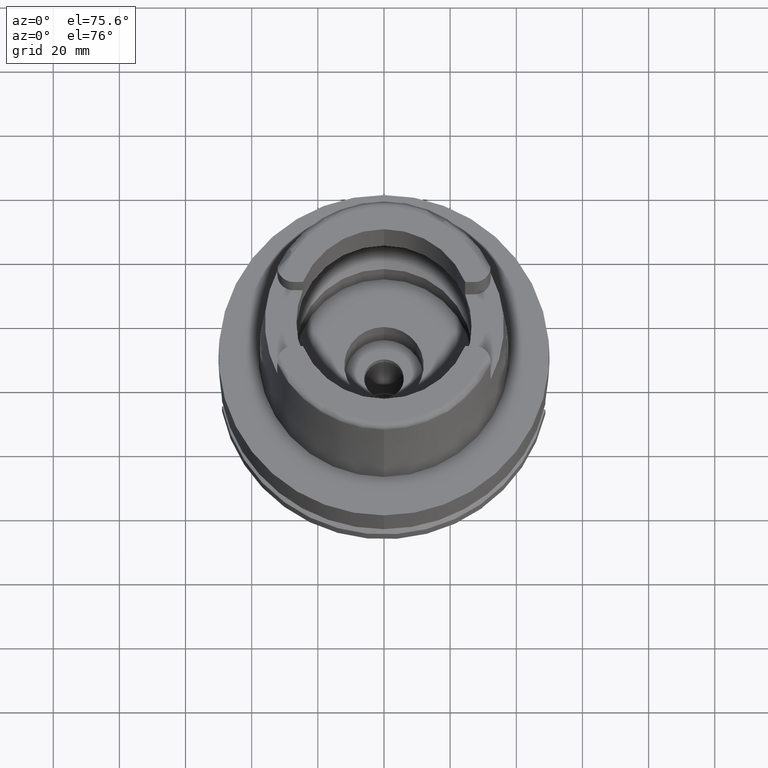
[diagram: clean part render]
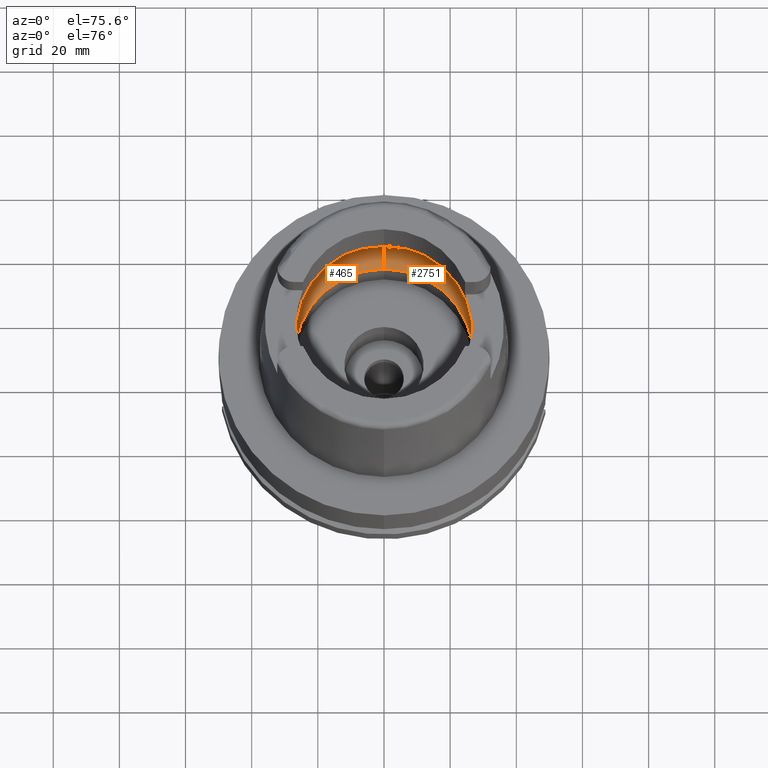
[diagram: same view with one multi-face feature highlighted, each face labeled with its STEP entity id]
A machine part, auxiliary view. The highlighted faces form ONE feature: a constant-radius fillet chain: 2 tangent blend faces with common blend radius 12 mm. The faces share edges in the B-rep.
Their STEP definitions:
[1] entity #465 (Torus):
#81 = EDGE_CURVE ( 'NONE', #4133, #3834, #2487, .T. ) ;
#96 = VERTEX_POINT ( 'NONE', #5460 ) ;
#110 = DIRECTION ( 'NONE',  ( 0.0000000000000000000, -0.6166666666667049990, -0.7872243785746061429 ) ) ;
#209 = ORIENTED_EDGE ( 'NONE', *, *, #1128, .F. ) ;
#379 = CARTESIAN_POINT ( 'NONE',  ( -31.48971910754000447, -0.8697454017997489073, 8.999999999999998224 ) ) ;
#465 = ADVANCED_FACE ( 'NONE', ( #1566 ), #5236, .F. ) ;
#658 = CARTESIAN_POINT ( 'NONE',  ( 0.0000000000000000000, 31.50000000000000000, 9.496624327025999790 ) ) ;
#682 = VERTEX_POINT ( 'NONE', #1807 ) ;
#775 = CARTESIAN_POINT ( 'NONE',  ( 0.0000000000000000000, -19.50000000000000000, 9.496624327025999790 ) ) ;
#788 = EDGE_CURVE ( 'NONE', #682, #2054, #3675, .T. ) ;
#918 = DIRECTION ( 'NONE',  ( 0.0000000000000000000, 0.0000000000000000000, 1.000000000000000000 ) ) ;
#982 = DIRECTION ( 'NONE',  ( 0.0000000000000000000, 1.000000000000000000, 0.0000000000000000000 ) ) ;
#1128 = EDGE_CURVE ( 'NONE', #2054, #96, #4947, .T. ) ;
#1129 = DIRECTION ( 'NONE',  ( 0.0000000000000000000, 0.0000000000000000000, -1.000000000000000000 ) ) ;
#1276 = CARTESIAN_POINT ( 'NONE',  ( -31.48971910754000447, 0.0000000000000000000, 9.000000000000000000 ) ) ;
#1403 = CARTESIAN_POINT ( 'NONE',  ( -31.48971910754000447, 0.0000000000000000000, 9.000000000000000000 ) ) ;
#1405 = ORIENTED_EDGE ( 'NONE', *, *, #81, .F. ) ;
#1501 = ORIENTED_EDGE ( 'NONE', *, *, #788, .F. ) ;
#1566 = FACE_OUTER_BOUND ( 'NONE', #3249, .T. ) ;
#1787 = CARTESIAN_POINT ( 'NONE',  ( -31.40918884336000616, 2.390158196043999705, 9.496624327025999790 ) ) ;
#1807 = CARTESIAN_POINT ( 'NONE',  ( 0.0000000000000000000, 26.89999999999999858, 0.04993178413025000512 ) ) ;
#1819 = DIRECTION ( 'NONE',  ( 0.0000000000000000000, 0.6166666666667049990, -0.7872243785746061429 ) ) ;
#1857 = CARTESIAN_POINT ( 'NONE',  ( -31.48971910754000447, 0.8697454016785111097, 9.000000000000001776 ) ) ;
#1966 = AXIS2_PLACEMENT_3D ( 'NONE', #3688, #2737, #1819 ) ;
#2054 = VERTEX_POINT ( 'NONE', #4640 ) ;
#2116 = VERTEX_POINT ( 'NONE', #5221 ) ;
#2247 = ORIENTED_EDGE ( 'NONE', *, *, #4053, .T. ) ;
#2351 = AXIS2_PLACEMENT_3D ( 'NONE', #4339, #1129, #4375 ) ;
#2487 = CIRCLE ( 'NONE', #5124, 31.49999999999998934 ) ;
#2532 = VERTEX_POINT ( 'NONE', #1276 ) ;
#2587 = EDGE_CURVE ( 'NONE', #2116, #2532, #5472, .T. ) ;
#2653 = DIRECTION ( 'NONE',  ( -1.000000000000000000, 0.0000000000000000000, 0.0000000000000000000 ) ) ;
#2737 = DIRECTION ( 'NONE',  ( 1.000000000000000000, 0.0000000000000000000, 0.0000000000000000000 ) ) ;
#2816 = CARTESIAN_POINT ( 'NONE',  ( -31.40918884336000616, 2.390158196043999705, 9.496624327025999790 ) ) ;
#2876 = CARTESIAN_POINT ( 'NONE',  ( -31.46287568614665986, 1.684656699916923683, 9.190219624986275093 ) ) ;
#3076 = DIRECTION ( 'NONE',  ( 0.0000000000000000000, 0.0000000000000000000, 1.000000000000000000 ) ) ;
#3094 = CARTESIAN_POINT ( 'NONE',  ( -31.46287568614665986, -1.684656700028137832, 9.190219625034576012 ) ) ;
#3234 = CARTESIAN_POINT ( 'NONE',  ( 0.0000000000000000000, 0.0000000000000000000, 9.496624327025999790 ) ) ;
#3248 = EDGE_CURVE ( 'NONE', #96, #2116, #3814, .T. ) ;
#3249 = EDGE_LOOP ( 'NONE', ( #5370, #209, #1501, #2247, #1405, #5002, #3295 ) ) ;
#3295 = ORIENTED_EDGE ( 'NONE', *, *, #2587, .F. ) ;
#3384 = AXIS2_PLACEMENT_3D ( 'NONE', #4202, #918, #982 ) ;
#3561 = DIRECTION ( 'NONE',  ( -0.9971171061384295209, 0.07587803796965221503, 0.0000000000000000000 ) ) ;
#3632 = CARTESIAN_POINT ( 'NONE',  ( -31.48971910754000447, 0.0000000000000000000, 9.000000000000000000 ) ) ;
#3675 = CIRCLE ( 'NONE', #3384, 26.89999999999999858 ) ;
#3688 = CARTESIAN_POINT ( 'NONE',  ( 0.0000000000000000000, 19.50000000000000000, 9.496624327025999790 ) ) ;
#3814 = CIRCLE ( 'NONE', #2351, 31.50000000000000000 ) ;
#3834 = VERTEX_POINT ( 'NONE', #658 ) ;
#3930 = CARTESIAN_POINT ( 'NONE',  ( 0.0000000000000000000, 0.0000000000000000000, 9.496624327025999790 ) ) ;
#4053 = EDGE_CURVE ( 'NONE', #682, #3834, #5392, .T. ) ;
#4133 = VERTEX_POINT ( 'NONE', #1787 ) ;
#4202 = CARTESIAN_POINT ( 'NONE',  ( 0.0000000000000000000, 0.0000000000000000000, 0.04993178413026000406 ) ) ;
#4339 = CARTESIAN_POINT ( 'NONE',  ( 0.0000000000000000000, 0.0000000000000000000, 9.496624327025999790 ) ) ;
#4375 = DIRECTION ( 'NONE',  ( 0.0000000000000000000, -1.000000000000000000, 0.0000000000000000000 ) ) ;
#4640 = CARTESIAN_POINT ( 'NONE',  ( 0.0000000000000000000, -26.89999999999999858, 0.04993178413026000406 ) ) ;
#4930 = DIRECTION ( 'NONE',  ( 0.0000000000000000000, 1.000000000000000000, 0.0000000000000000000 ) ) ;
#4947 = CIRCLE ( 'NONE', #5246, 11.99999999999999822 ) ;
#5002 = ORIENTED_EDGE ( 'NONE', *, *, #5071, .F. ) ;
#5071 = EDGE_CURVE ( 'NONE', #2532, #4133, #5831, .T. ) ;
#5124 = AXIS2_PLACEMENT_3D ( 'NONE', #3234, #5523, #3561 ) ;
#5221 = CARTESIAN_POINT ( 'NONE',  ( -31.40918884336000616, -2.390158196043999705, 9.496624327025999790 ) ) ;
#5236 = TOROIDAL_SURFACE ( 'NONE', #5722, 19.50000000000000000, 12.00000000000000000 ) ;
#5246 = AXIS2_PLACEMENT_3D ( 'NONE', #775, #2653, #110 ) ;
#5370 = ORIENTED_EDGE ( 'NONE', *, *, #3248, .F. ) ;
#5392 = CIRCLE ( 'NONE', #1966, 11.99999999999999822 ) ;
#5460 = CARTESIAN_POINT ( 'NONE',  ( 0.0000000000000000000, -31.50000000000000000, 9.496624327025999790 ) ) ;
#5472 = B_SPLINE_CURVE_WITH_KNOTS ( 'NONE', 3,
 ( #5966, #3094, #379, #3632 ),
 .UNSPECIFIED., .F., .F.,
 ( 4, 4 ),
 ( 0.0000000000000000000, 1.000000000000000000 ),
 .UNSPECIFIED. ) ;
#5523 = DIRECTION ( 'NONE',  ( 0.0000000000000000000, 0.0000000000000000000, -1.000000000000000000 ) ) ;
#5722 = AXIS2_PLACEMENT_3D ( 'NONE', #3930, #3076, #4930 ) ;
#5831 = B_SPLINE_CURVE_WITH_KNOTS ( 'NONE', 3,
 ( #1403, #1857, #2876, #2816 ),
 .UNSPECIFIED., .F., .F.,
 ( 4, 4 ),
 ( 0.0000000000000000000, 1.000000000000000000 ),
 .UNSPECIFIED. ) ;
#5966 = CARTESIAN_POINT ( 'NONE',  ( -31.40918884336000616, -2.390158196043999705, 9.496624327025999790 ) ) ;
[2] entity #2751 (Torus):
#17 = EDGE_LOOP ( 'NONE', ( #4936, #204, #3011, #3491, #5803, #5824, #1982 ) ) ;
#96 = VERTEX_POINT ( 'NONE', #5460 ) ;
#110 = DIRECTION ( 'NONE',  ( 0.0000000000000000000, -0.6166666666667049990, -0.7872243785746061429 ) ) ;
#204 = ORIENTED_EDGE ( 'NONE', *, *, #5317, .F. ) ;
#658 = CARTESIAN_POINT ( 'NONE',  ( 0.0000000000000000000, 31.50000000000000000, 9.496624327025999790 ) ) ;
#682 = VERTEX_POINT ( 'NONE', #1807 ) ;
#775 = CARTESIAN_POINT ( 'NONE',  ( 0.0000000000000000000, -19.50000000000000000, 9.496624327025999790 ) ) ;
#1128 = EDGE_CURVE ( 'NONE', #2054, #96, #4947, .T. ) ;
#1169 = CARTESIAN_POINT ( 'NONE',  ( 0.0000000000000000000, 0.0000000000000000000, 9.496624327025999790 ) ) ;
#1304 = CARTESIAN_POINT ( 'NONE',  ( 31.48971910753999026, -0.8697454017312684638, 8.999999999999998224 ) ) ;
#1541 = CIRCLE ( 'NONE', #4766, 31.50000000000000000 ) ;
#1679 = DIRECTION ( 'NONE',  ( 0.0000000000000000000, 0.0000000000000000000, -1.000000000000000000 ) ) ;
#1807 = CARTESIAN_POINT ( 'NONE',  ( 0.0000000000000000000, 26.89999999999999858, 0.04993178413025000512 ) ) ;
#1819 = DIRECTION ( 'NONE',  ( 0.0000000000000000000, 0.6166666666667049990, -0.7872243785746061429 ) ) ;
#1922 = CIRCLE ( 'NONE', #5248, 26.89999999999999858 ) ;
#1966 = AXIS2_PLACEMENT_3D ( 'NONE', #3688, #2737, #1819 ) ;
#1982 = ORIENTED_EDGE ( 'NONE', *, *, #3980, .F. ) ;
#2054 = VERTEX_POINT ( 'NONE', #4640 ) ;
#2225 = DIRECTION ( 'NONE',  ( 0.0000000000000000000, 0.0000000000000000000, 1.000000000000000000 ) ) ;
#2227 = CARTESIAN_POINT ( 'NONE',  ( 31.48971910753999026, 0.8697454017787721314, 9.000000000000001776 ) ) ;
#2248 = CARTESIAN_POINT ( 'NONE',  ( 31.40918884336000616, -2.390158196043999705, 9.496624327025999790 ) ) ;
#2653 = DIRECTION ( 'NONE',  ( -1.000000000000000000, 0.0000000000000000000, 0.0000000000000000000 ) ) ;
#2719 = CARTESIAN_POINT ( 'NONE',  ( 31.46287568614665986, 1.684656700008886121, 9.190219625026216477 ) ) ;
#2737 = DIRECTION ( 'NONE',  ( 1.000000000000000000, 0.0000000000000000000, 0.0000000000000000000 ) ) ;
#2751 = ADVANCED_FACE ( 'NONE', ( #3693 ), #4020, .F. ) ;
#2773 = CARTESIAN_POINT ( 'NONE',  ( 0.0000000000000000000, 0.0000000000000000000, 9.496624327025999790 ) ) ;
#2856 = AXIS2_PLACEMENT_3D ( 'NONE', #1169, #1679, #5416 ) ;
#2945 = VERTEX_POINT ( 'NONE', #4010 ) ;
#3011 = ORIENTED_EDGE ( 'NONE', *, *, #4053, .F. ) ;
#3018 = EDGE_CURVE ( 'NONE', #2945, #96, #5389, .T. ) ;
#3146 = CARTESIAN_POINT ( 'NONE',  ( 31.46287568614665986, -1.684656699965325632, 9.190219625007294724 ) ) ;
#3302 = DIRECTION ( 'NONE',  ( 0.0000000000000000000, 0.0000000000000000000, 1.000000000000000000 ) ) ;
#3412 = DIRECTION ( 'NONE',  ( 0.0000000000000000000, 1.000000000000000000, 0.0000000000000000000 ) ) ;
#3413 = VERTEX_POINT ( 'NONE', #4069 ) ;
#3442 = EDGE_CURVE ( 'NONE', #3413, #5485, #5192, .T. ) ;
#3455 = DIRECTION ( 'NONE',  ( 0.0000000000000000000, 1.000000000000000000, 0.0000000000000000000 ) ) ;
#3491 = ORIENTED_EDGE ( 'NONE', *, *, #5508, .F. ) ;
#3570 = CARTESIAN_POINT ( 'NONE',  ( 31.48971910754000447, 0.0000000000000000000, 9.000000000000000000 ) ) ;
#3688 = CARTESIAN_POINT ( 'NONE',  ( 0.0000000000000000000, 19.50000000000000000, 9.496624327025999790 ) ) ;
#3693 = FACE_OUTER_BOUND ( 'NONE', #17, .T. ) ;
#3823 = AXIS2_PLACEMENT_3D ( 'NONE', #2773, #3302, #3412 ) ;
#3834 = VERTEX_POINT ( 'NONE', #658 ) ;
#3980 = EDGE_CURVE ( 'NONE', #5485, #2945, #4748, .T. ) ;
#4010 = CARTESIAN_POINT ( 'NONE',  ( 31.40918884336000616, -2.390158196043999705, 9.496624327025999790 ) ) ;
#4020 = TOROIDAL_SURFACE ( 'NONE', #3823, 19.50000000000000000, 12.00000000000000000 ) ;
#4053 = EDGE_CURVE ( 'NONE', #682, #3834, #5392, .T. ) ;
#4069 = CARTESIAN_POINT ( 'NONE',  ( 31.40918884336000616, 2.390158196043999705, 9.496624327025999790 ) ) ;
#4492 = CARTESIAN_POINT ( 'NONE',  ( 31.40918884336000616, 2.390158196043999705, 9.496624327025999790 ) ) ;
#4545 = CARTESIAN_POINT ( 'NONE',  ( 31.48971910754000447, 0.0000000000000000000, 9.000000000000000000 ) ) ;
#4551 = CARTESIAN_POINT ( 'NONE',  ( 0.0000000000000000000, 0.0000000000000000000, 0.04993178413025000512 ) ) ;
#4640 = CARTESIAN_POINT ( 'NONE',  ( 0.0000000000000000000, -26.89999999999999858, 0.04993178413026000406 ) ) ;
#4748 = B_SPLINE_CURVE_WITH_KNOTS ( 'NONE', 3,
 ( #4545, #1304, #3146, #2248 ),
 .UNSPECIFIED., .F., .F.,
 ( 4, 4 ),
 ( 0.0000000000000000000, 1.000000000000000000 ),
 .UNSPECIFIED. ) ;
#4766 = AXIS2_PLACEMENT_3D ( 'NONE', #5784, #5717, #3455 ) ;
#4936 = ORIENTED_EDGE ( 'NONE', *, *, #3442, .F. ) ;
#4947 = CIRCLE ( 'NONE', #5246, 11.99999999999999822 ) ;
#4948 = CARTESIAN_POINT ( 'NONE',  ( 31.48971910754000447, 0.0000000000000000000, 9.000000000000000000 ) ) ;
#5192 = B_SPLINE_CURVE_WITH_KNOTS ( 'NONE', 3,
 ( #4492, #2719, #2227, #4948 ),
 .UNSPECIFIED., .F., .F.,
 ( 4, 4 ),
 ( 0.0000000000000000000, 1.000000000000000000 ),
 .UNSPECIFIED. ) ;
#5246 = AXIS2_PLACEMENT_3D ( 'NONE', #775, #2653, #110 ) ;
#5248 = AXIS2_PLACEMENT_3D ( 'NONE', #4551, #2225, #5964 ) ;
#5317 = EDGE_CURVE ( 'NONE', #3834, #3413, #1541, .T. ) ;
#5389 = CIRCLE ( 'NONE', #2856, 31.49999999999998934 ) ;
#5392 = CIRCLE ( 'NONE', #1966, 11.99999999999999822 ) ;
#5416 = DIRECTION ( 'NONE',  ( 0.9971171061384295209, -0.07587803796965221503, 0.0000000000000000000 ) ) ;
#5460 = CARTESIAN_POINT ( 'NONE',  ( 0.0000000000000000000, -31.50000000000000000, 9.496624327025999790 ) ) ;
#5485 = VERTEX_POINT ( 'NONE', #3570 ) ;
#5508 = EDGE_CURVE ( 'NONE', #2054, #682, #1922, .T. ) ;
#5717 = DIRECTION ( 'NONE',  ( 0.0000000000000000000, 0.0000000000000000000, -1.000000000000000000 ) ) ;
#5784 = CARTESIAN_POINT ( 'NONE',  ( 0.0000000000000000000, 0.0000000000000000000, 9.496624327025999790 ) ) ;
#5803 = ORIENTED_EDGE ( 'NONE', *, *, #1128, .T. ) ;
#5824 = ORIENTED_EDGE ( 'NONE', *, *, #3018, .F. ) ;
#5964 = DIRECTION ( 'NONE',  ( 0.0000000000000000000, -1.000000000000000000, 0.0000000000000000000 ) ) ;